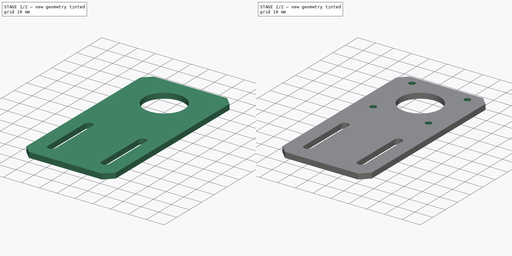
[diagram: build sequence overview — one tinted view per stage of 2, left to right]
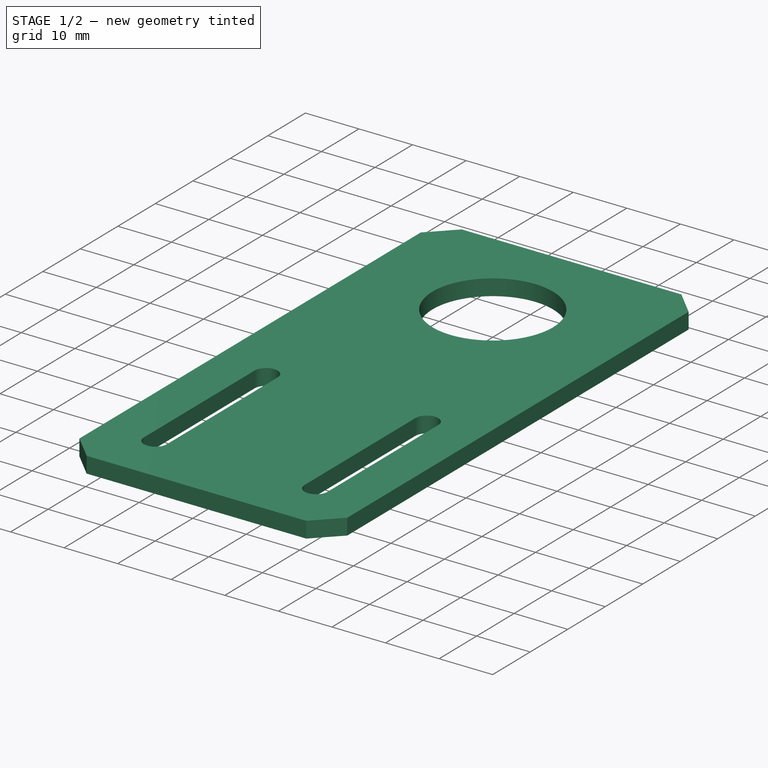
[diagram: stage 1 of 2 — iso view after this stage's code; geometry added in this stage tinted green]
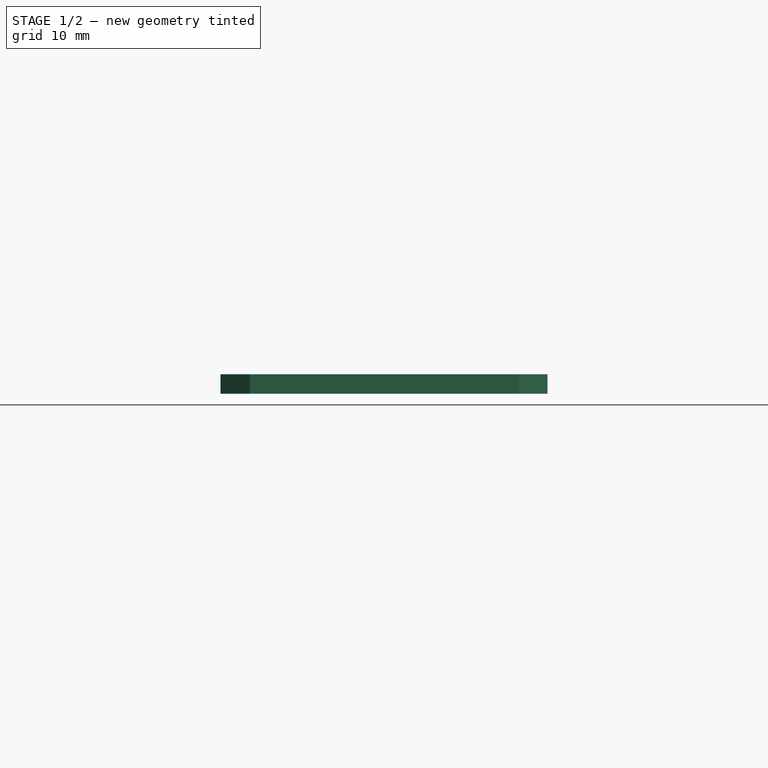
[diagram: stage 1 of 2 — front view after this stage's code; geometry added in this stage tinted green]
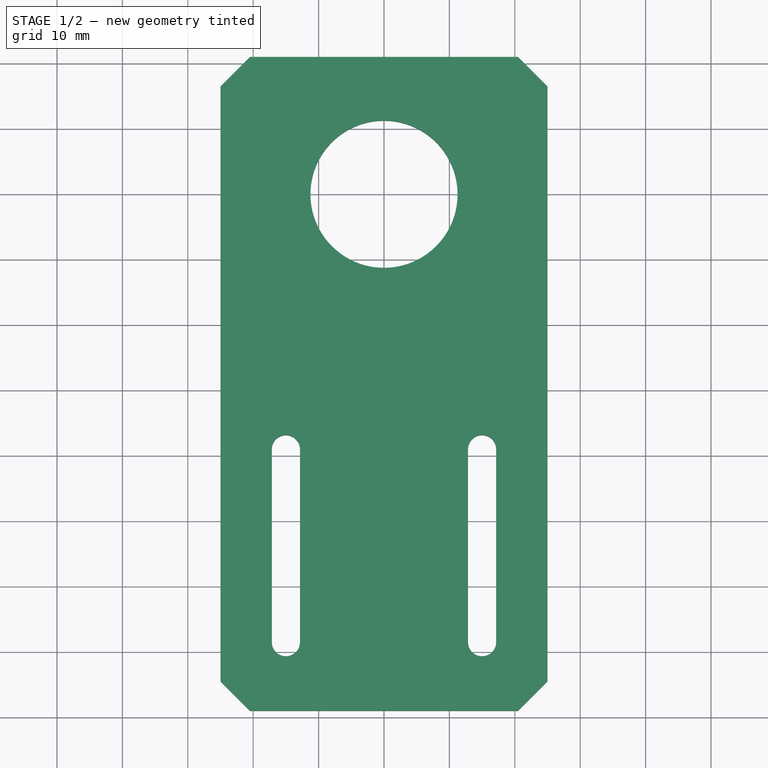
[diagram: stage 1 of 2 — top view after this stage's code; geometry added in this stage tinted green]
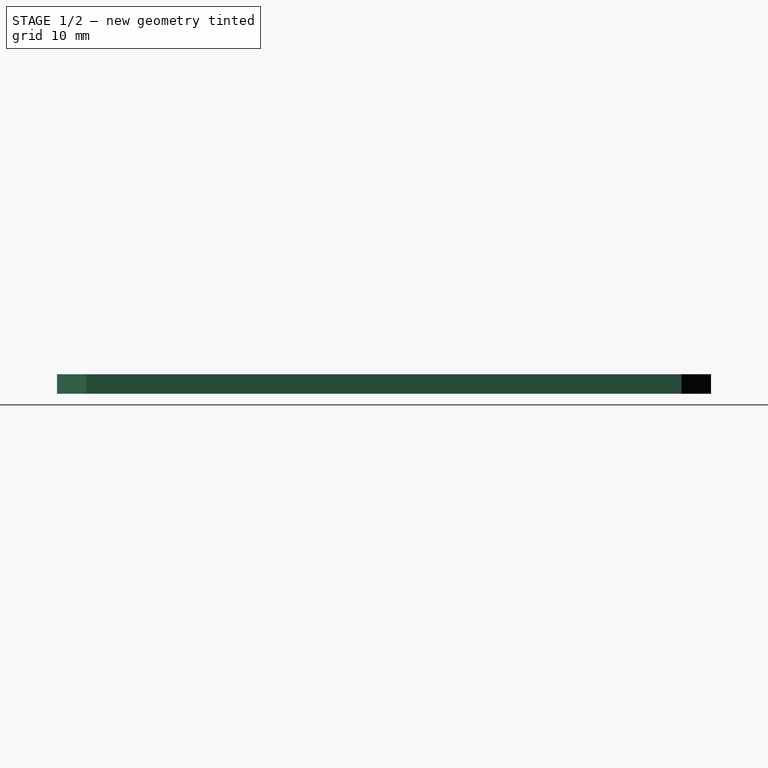
[diagram: stage 1 of 2 — right view after this stage's code; geometry added in this stage tinted green]
FCSTD DOCUMENT  (FreeCAD 0.20R29177 +426 (Git))
Label: Stepper17BracketFlat
License: All rights reserved
LicenseURL: http://en.wikipedia.org/wiki/All_rights_reserved
objects: App::DocumentObjectGroup×3, PartDesign::CoordinateSystem×2, Sketcher::SketchObject×2, App::FeaturePython×1, PartDesign::Pad×1, PartDesign::Hole×1, PartDesign::Body×1, App::Part×1
note: 9 computed .brp shape members not serialized (recipe doc carries the construction recipe); baked Part::Feature solids carry a one-line shape summary decoded from their .brp

FEATURE [App::DocumentObjectGroup] Parts
FEATURE [PartDesign::CoordinateSystem] LCS_Origin
  AttacherType = Attacher::AttachEngine3D
  MapMode = 2
  Support = -> [X_Axis]
FEATURE [App::FeaturePython] Variables  # WARN: FeaturePython — macro-defined, semantics opaque (R4)
  Type = App::PropertyContainer
FEATURE [App::DocumentObjectGroup] Constraints
FEATURE [App::DocumentObjectGroup] Configurations
FEATURE [Sketcher::SketchObject] Sketch
  FullyConstrained = true
  MapMode = 5
  Support = -> [XY_Plane001]
  sketch-geometry (38):
    g0: Circle CenterX=0 CenterY=0 CenterZ=0 NormalX=0 NormalY=0 NormalZ=1 AngleXU=0 Radius=11.25
    g1: GeomPoint X=0 Y=-29 Z=0
    g2: ArcOfCircle CenterX=-15 CenterY=-39 CenterZ=0 NormalX=0 NormalY=0 NormalZ=1 AngleXU=0 Radius=2.15 StartAngle=0 EndAngle=3.14159
    g3: ArcOfCircle CenterX=-15 CenterY=-68.5 CenterZ=0 NormalX=0 NormalY=0 NormalZ=1 AngleXU=0 Radius=2.15 StartAngle=3.14159 EndAngle=6.28319
    g4: LineSegment StartX=-17.15 StartY=-39 StartZ=0 EndX=-17.15 EndY=-68.5 EndZ=0
    g5: LineSegment StartX=-12.85 StartY=-68.5 StartZ=0 EndX=-12.85 EndY=-39 EndZ=0
    g6: GeomPoint X=-15 Y=-36.85 Z=0
    g7: GeomPoint X=-15 Y=-70.65 Z=0
    g8: LineSegment StartX=-15 StartY=-36.85 StartZ=0 EndX=-15 EndY=-70.65 EndZ=0
    g9: ArcOfCircle CenterX=15 CenterY=-39 CenterZ=0 NormalX=0 NormalY=0 NormalZ=1 AngleXU=0 Radius=2.15 StartAngle=3.062e-13 EndAngle=3.14159
    g10: ArcOfCircle CenterX=15 CenterY=-68.5 CenterZ=0 NormalX=0 NormalY=0 NormalZ=1 AngleXU=0 Radius=2.15 StartAngle=3.14159 EndAngle=6.28319
    g11: LineSegment StartX=12.85 StartY=-39 StartZ=0 EndX=12.85 EndY=-68.5 EndZ=0
    g12: LineSegment StartX=17.15 StartY=-68.5 StartZ=0 EndX=17.15 EndY=-39 EndZ=0
    g13: GeomPoint X=15 Y=-36.85 Z=0
    g14: GeomPoint X=15 Y=-70.65 Z=0
    g15: LineSegment StartX=15 StartY=-36.85 StartZ=0 EndX=15 EndY=-70.65 EndZ=0
    g16: LineSegment StartX=-15 StartY=-39 StartZ=0 EndX=0 EndY=-39 EndZ=0
    g17: LineSegment StartX=0 StartY=-39 StartZ=0 EndX=15 EndY=-39 EndZ=0
    g18: LineSegment StartX=0 StartY=0 StartZ=0 EndX=15.5 EndY=15.5 EndZ=0
    g19: LineSegment StartX=15.5 StartY=15.5 StartZ=0 EndX=15.5 EndY=0 EndZ=0
    g20: Circle CenterX=15.5 CenterY=15.5 CenterZ=0 NormalX=0 NormalY=0 NormalZ=1 AngleXU=0 Radius=1.75
    g21: LineSegment StartX=25 StartY=21 StartZ=0 EndX=20.5 EndY=21 EndZ=0
    g22: LineSegment StartX=25 StartY=16.5 StartZ=0 EndX=25 EndY=21 EndZ=0
    g23: LineSegment StartX=-25 StartY=21 StartZ=0 EndX=-25 EndY=16.5 EndZ=0
    g24: LineSegment StartX=20.5 StartY=21 StartZ=0 EndX=-20.5 EndY=21 EndZ=0
    g25: LineSegment StartX=-20.5 StartY=21 StartZ=0 EndX=-25 EndY=21 EndZ=0
    g26: LineSegment StartX=-25 StartY=-79 StartZ=0 EndX=-20.5 EndY=-79 EndZ=0
    g27: LineSegment StartX=-25 StartY=16.5 StartZ=0 EndX=-25 EndY=-74.5 EndZ=0
    g28: LineSegment StartX=-25 StartY=-74.5 StartZ=0 EndX=-25 EndY=-79 EndZ=0
    g29: LineSegment StartX=-20.5 StartY=-79 StartZ=0 EndX=20.5 EndY=-79 EndZ=0
    g30: LineSegment StartX=20.5 StartY=-79 StartZ=0 EndX=25 EndY=-79 EndZ=0
    g31: LineSegment StartX=25 StartY=-79 StartZ=0 EndX=25 EndY=-74.5 EndZ=0
    g32: LineSegment StartX=25 StartY=-74.5 StartZ=0 EndX=25 EndY=16.5 EndZ=0
    g33: LineSegment StartX=-20.5 StartY=-79 StartZ=0 EndX=-25 EndY=-74.5 EndZ=0
    g34: LineSegment StartX=25 StartY=-74.5 StartZ=0 EndX=20.5 EndY=-79 EndZ=0
    g35: LineSegment StartX=25 StartY=16.5 StartZ=0 EndX=20.5 EndY=21 EndZ=0
    g36: LineSegment StartX=-25 StartY=16.5 StartZ=0 EndX=-20.5 EndY=21 EndZ=0
    g37: Circle CenterX=4.1e-15 CenterY=-53.75 CenterZ=0 NormalX=0 NormalY=0 NormalZ=1 AngleXU=0 Radius=5
  constraints (95):
    c: Coincident(g0,g-1)
    c: Diameter(g0) = 22.5
    c: Coincident(g22,g21)
    c: Coincident(g25,g23)
    c: Coincident(g28,g26)
    c: Coincident(g30,g31)
    c: Symmetric(g25,g31,g1)
    c: PointOnObject(g1,g-2)
    c: DistanceX(g25,g21) = 50
    c: DistanceY(g31,g22) = 100
    c: Tangent(g2,g4) = -1.5708
    c: Tangent(g4,g3) = -1.5708
    c: Tangent(g3,g5) = -1.5708
    c: Tangent(g5,g2) = -1.5708
    c: Equal(g2,g3)
    c: Vertical(g4)
    c: Diameter(g2) = 4.3
    c: PointOnObject(g6,g2)
    c: PointOnObject(g7,g3)
    c: Coincident(g8,g6)
    c: Coincident(g8,g7)
    c: Vertical(g8)
    c: PointOnObject(g3,g8)
    c: DistanceY(g8,g8) = 33.8
    c: Tangent(g9,g11) = -1.5708
    c: Tangent(g11,g10) = -1.5708
    c: Tangent(g10,g12) = -1.5708
    c: Tangent(g12,g9) = -1.5708
    c: Equal(g9,g10)
    c: Vertical(g11)
    c: Equal(g2,g9) = 4.3
    c: PointOnObject(g13,g9)
    c: PointOnObject(g14,g10)
    c: Coincident(g15,g13)
    c: Coincident(g15,g14)
    c: Vertical(g15)
    c: PointOnObject(g10,g15)
    c: Equal(g8,g15) = 33.8
    c: Coincident(g16,g2)
    c: PointOnObject(g16,g-2)
    c: Horizontal(g16)
    c: Coincident(g16,g17)
    c: Coincident(g17,g9)
    c: Horizontal(g17)
    c: Equal(g16,g17)
    c: DistanceX(g2,g9) = 30  'SlotSpacing'
    c: DistanceY(g28,g16) = 40
    c: Coincident(g18,g0)
    c: Angle(g-1,g18) = 0.785398
    c: Coincident(g19,g18)
    c: PointOnObject(g19,g-1)
    c: Vertical(g19)
    c: DistanceY(g19,g19) = 15.5
    c: Coincident(g20,g18)
    c: Diameter(g20) = 3.5
    c: DistanceY(g0,g25) = 21
    c: Coincident(g21,g24)
    c: Horizontal(g21)
    c: Coincident(g32,g22)
    c: Vertical(g22)
    c: Coincident(g23,g27)
    c: Vertical(g23)
    c: Coincident(g24,g25)
    c: Horizontal(g24)
    c: Horizontal(g25)
    c: Coincident(g26,g29)
    c: Horizontal(g26)
    c: Coincident(g27,g28)
    c: Vertical(g27)
    c: Vertical(g28)
    c: Coincident(g29,g30)
    c: Horizontal(g29)
    c: Horizontal(g30)
    c: Coincident(g31,g32)
    c: Vertical(g31)
    c: Vertical(g32)
    c: Equal(g31,g30)
    c: Equal(g30,g26)
    c: Equal(g26,g28)
    c: Equal(g28,g22)
    c: Equal(g22,g21)
    c: Equal(g21,g25)
    c: Equal(g25,g23)
    c: DistanceX(g25,g25) = 4.5
    c: Coincident(g33,g29)
    c: Coincident(g33,g27)
    c: Coincident(g34,g32)
    c: Coincident(g34,g29)
    c: Coincident(g35,g32)
    c: Coincident(g35,g24)
    c: Coincident(g36,g27)
    c: Coincident(g36,g24)
    c: Diameter(g37) = 10
    c: Symmetric(g3,g9,g37)
    c: DistanceY(g37,g0) = 53.75  'MountOffset'
FEATURE [PartDesign::Pad] Pad
  Direction = (0,0,1)
  Length = 3
  Length2 = 10
  Profile = -> Sketch
  ReferenceAxis = -> Sketch [N_Axis]
  Type = 0
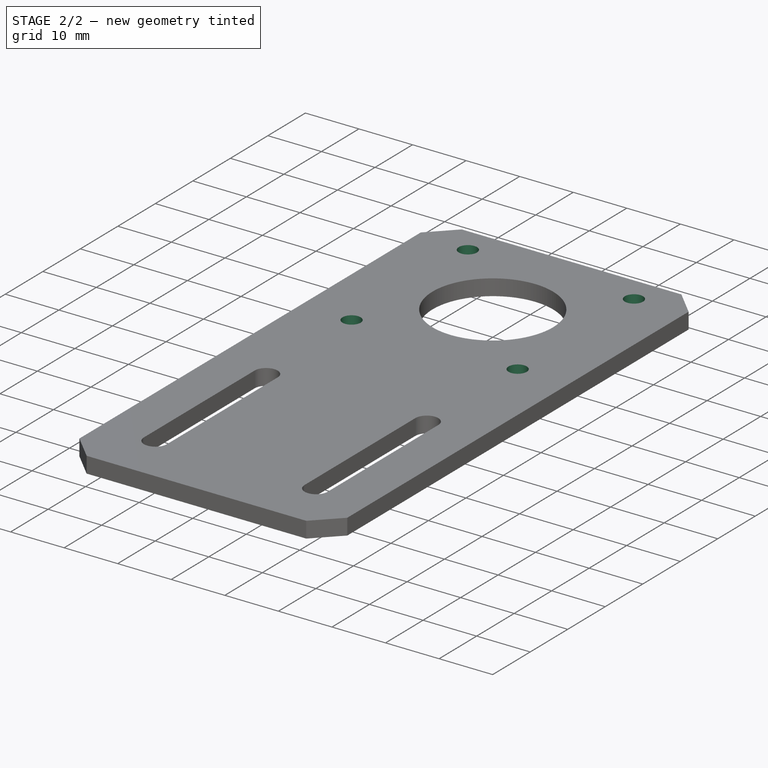
[diagram: stage 2 of 2 — iso view after this stage's code; geometry added in this stage tinted green]
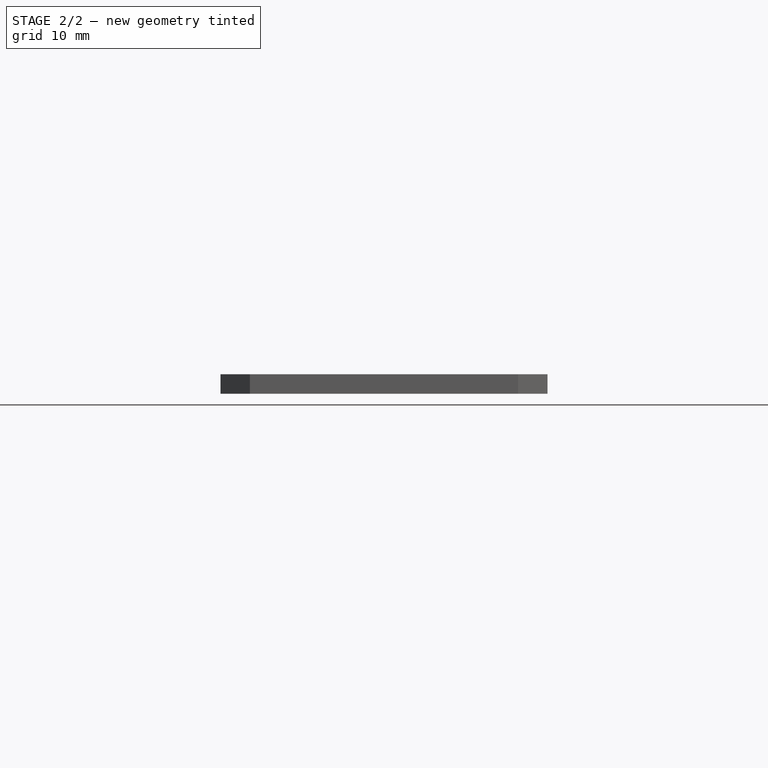
[diagram: stage 2 of 2 — front view after this stage's code; geometry added in this stage tinted green]
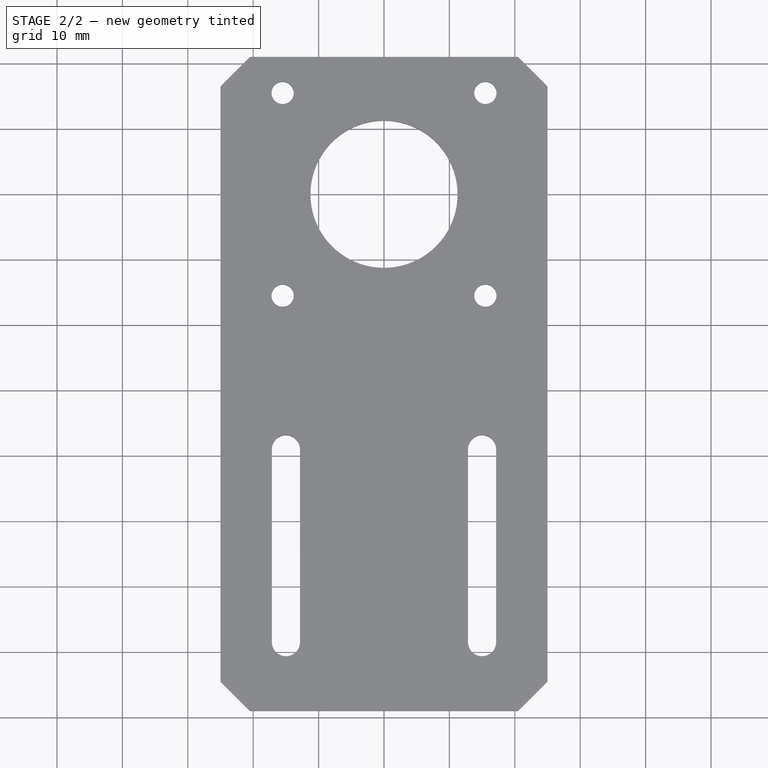
[diagram: stage 2 of 2 — top view after this stage's code; geometry added in this stage tinted green]
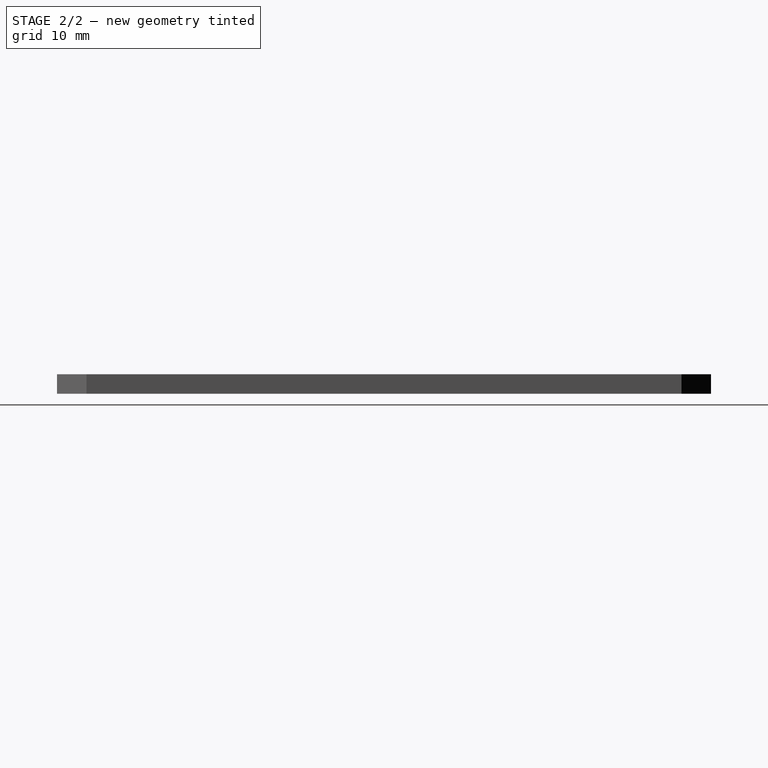
[diagram: stage 2 of 2 — right view after this stage's code; geometry added in this stage tinted green]
FEATURE [Sketcher::SketchObject] Sketch001
  FullyConstrained = true
  MapMode = 5
  Support = -> [XY_Plane001]
  sketch-geometry (9):
    g0: LineSegment StartX=-15.5 StartY=-15.5 StartZ=0 EndX=-15.5 EndY=15.5 EndZ=0
    g1: LineSegment StartX=-15.5 StartY=15.5 StartZ=0 EndX=15.5 EndY=15.5 EndZ=0
    g2: LineSegment StartX=15.5 StartY=15.5 StartZ=0 EndX=15.5 EndY=-15.5 EndZ=0
    g3: LineSegment StartX=15.5 StartY=-15.5 StartZ=0 EndX=-15.5 EndY=-15.5 EndZ=0
    g4: GeomPoint X=0 Y=0 Z=0
    g5: Circle CenterX=-15.5 CenterY=15.5 CenterZ=0 NormalX=0 NormalY=0 NormalZ=1 AngleXU=0 Radius=1
    g6: Circle CenterX=15.5 CenterY=15.5 CenterZ=0 NormalX=0 NormalY=0 NormalZ=1 AngleXU=0 Radius=1
    g7: Circle CenterX=15.5 CenterY=-15.5 CenterZ=0 NormalX=0 NormalY=0 NormalZ=1 AngleXU=0 Radius=1
    g8: Circle CenterX=-15.5 CenterY=-15.5 CenterZ=0 NormalX=0 NormalY=0 NormalZ=1 AngleXU=0 Radius=1
  constraints (20):
    c: Coincident(g0,g1)
    c: Coincident(g1,g2)
    c: Coincident(g2,g3)
    c: Coincident(g3,g0)
    c: Horizontal(g1)
    c: Horizontal(g3)
    c: Vertical(g0)
    c: Vertical(g2)
    c: Symmetric(g1,g0,g4)
    c: Coincident(g4,g-1)
    c: DistanceY(g2,g2) = 31
    c: Equal(g2,g1)
    c: Coincident(g5,g0)
    c: Coincident(g6,g1)
    c: Coincident(g7,g2)
    c: Coincident(g8,g0)
    c: Equal(g8,g5)
    c: Equal(g5,g6)
    c: Equal(g6,g7)
    c: Diameter(g6) = 2
FEATURE [PartDesign::Hole] Hole
  BaseFeature = -> Pad
  CustomThreadClearance = 0
  Depth = 25
  DepthType = 0
  Diameter = 3.4
  DrillForDepth = false
  DrillPoint = 1
  DrillPointAngle = 118
  HoleCutCountersinkAngle = 90
  HoleCutCustomValues = false
  HoleCutDepth = 0
  HoleCutDiameter = 6.1
  HoleCutType = 0
  ModelThread = false
  Profile = -> Sketch001
  Reversed = true
  Tapered = false
  TaperedAngle = 90
  ThreadClass = 0
  ThreadDepth = 25
  ThreadDepthType = 0
  ThreadDirection = 0
  ThreadFit = 0
  ThreadSize = 9
  ThreadType = 1
  Threaded = false
  UseCustomThreadClearance = false
FEATURE [PartDesign::Body] Body
  Group = -> [Sketch,Pad,Sketch001,Hole]
  Origin = -> Origin001
  Tip = -> Hole
FEATURE [PartDesign::CoordinateSystem] LCS_Mount
  AttacherType = Attacher::AttachEngine3D
  AttachmentOffset = pos=(0,-53.75,0) rot=(0,0,1;0rad)
  MapMode = 2
  Placement = pos=(0,-53.75,0) rot=(0,0,1;0rad)
  Support = -> [LCS_Origin]
  expr: .AttachmentOffset.Base.y = <<Sketch>>.Constraints.MountOffset * -1
FEATURE [App::Part] Assembly
  AssemblyType = Part::Link
  Group = -> [LCS_Origin,Variables,Constraints,Configurations,Body,LCS_Mount]
  Origin = -> Origin
  Type = Assembly
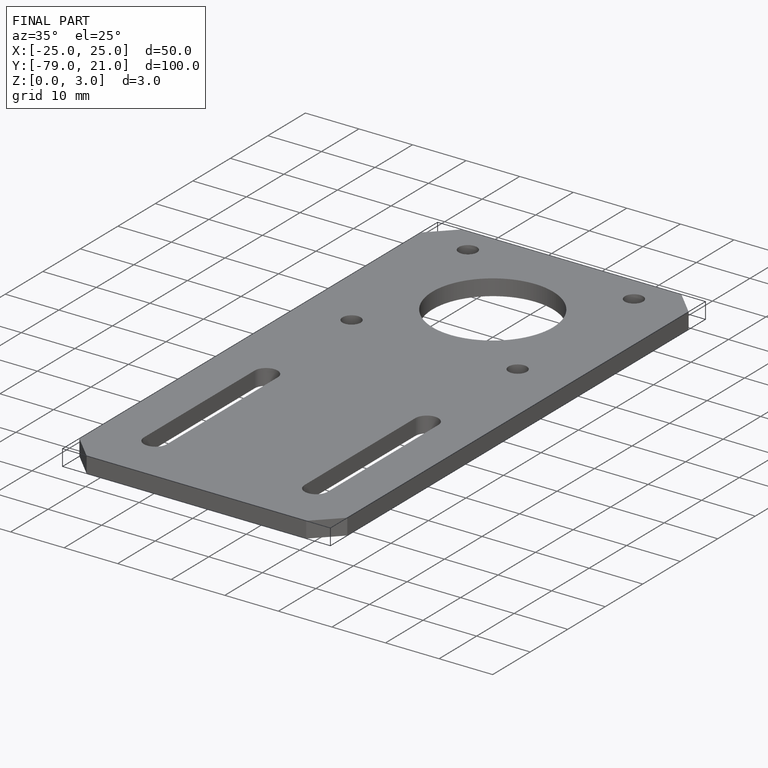
[diagram: finished part — iso view with bounding-box wireframe]
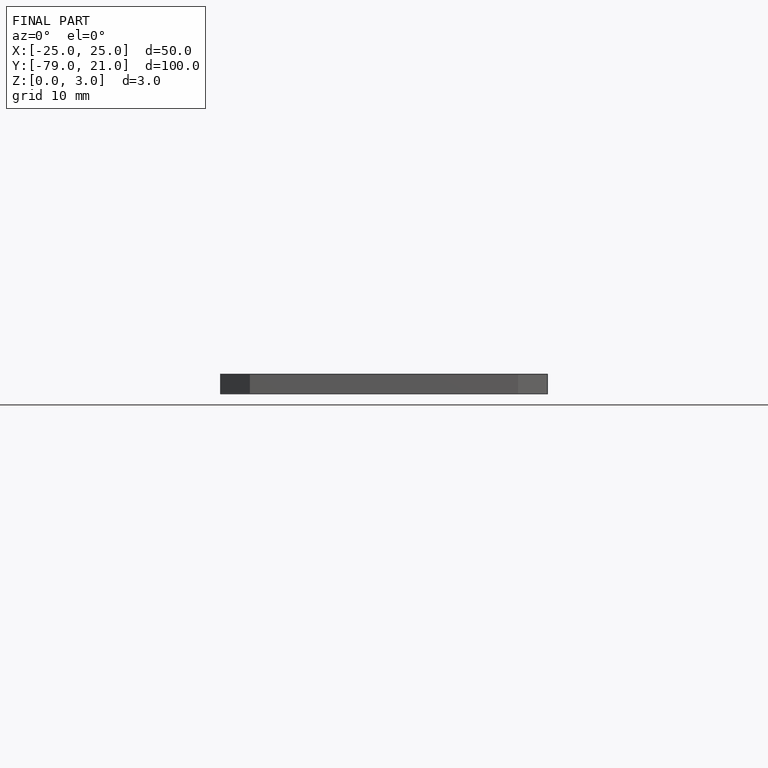
[diagram: finished part — front view with bounding-box wireframe]
